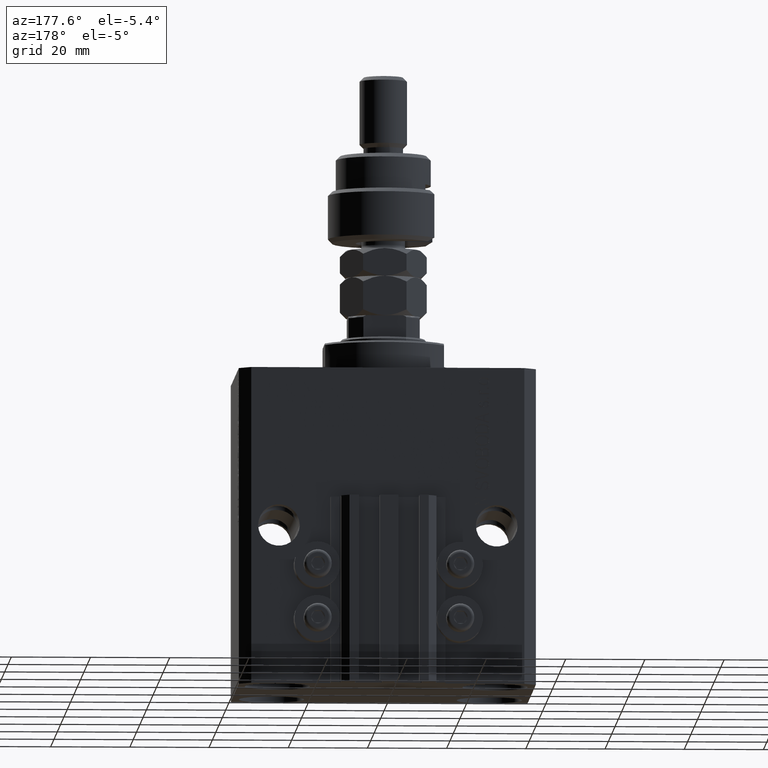
[diagram: clean part render]
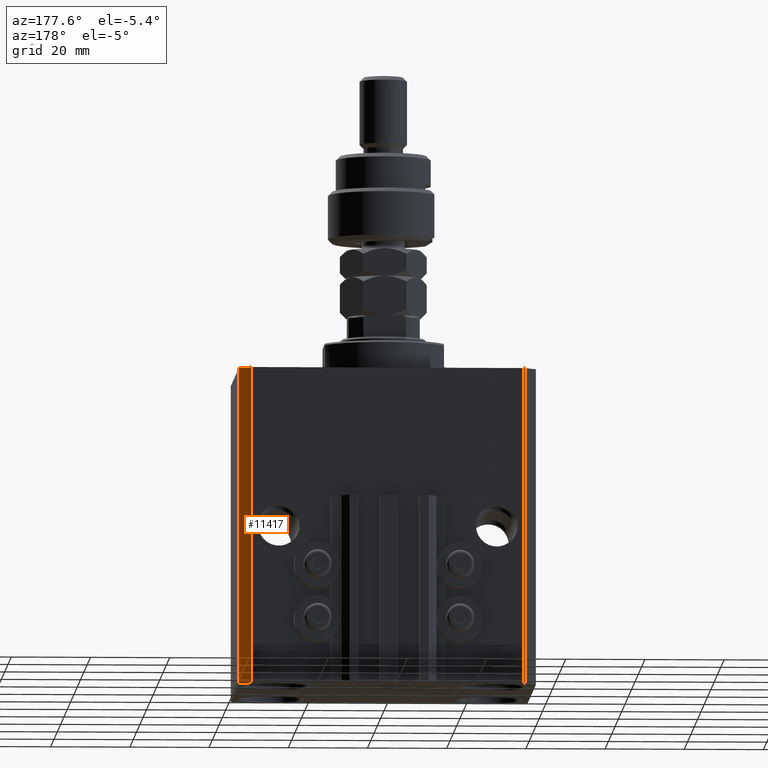
[diagram: same view with one face highlighted and labeled with its STEP entity id]
A machine part, auxiliary view. The second image highlights one B-rep face of the part: STEP entity #11417.
In plain terms, the highlighted planar face has unit normal (0.7071, 0.7071, 0).
Its self-contained STEP definition (entity closure, byte-faithful):
#499 = AXIS2_PLACEMENT_3D ( 'NONE', #31868, #24100, #36131 ) ;
#1289 = CARTESIAN_POINT ( 'NONE',  ( 34.50000000000056843, 27.50000000000000000, 0.000000000000000000 ) ) ;
#1378 = EDGE_CURVE ( 'NONE', #6586, #49499, #34544, .T. ) ;
#2132 = LINE ( 'NONE', #21430, #44668 ) ;
#4935 = VECTOR ( 'NONE', #34296, 1000.000000000000114 ) ;
#6586 = VERTEX_POINT ( 'NONE', #13557 ) ;
#9557 = ORIENTED_EDGE ( 'NONE', *, *, #35802, .F. ) ;
#9635 = EDGE_CURVE ( 'NONE', #35171, #6586, #20203, .T. ) ;
#11417 = ADVANCED_FACE ( 'NONE', ( #20811 ), #40141, .T. ) ;
#12015 = EDGE_CURVE ( 'NONE', #35171, #47504, #2132, .T. ) ;
#12648 = ORIENTED_EDGE ( 'NONE', *, *, #12015, .F. ) ;
#13557 = CARTESIAN_POINT ( 'NONE',  ( 34.50000000000056843, 27.50000000000000000, -80.00000000000000000 ) ) ;
#15672 = ORIENTED_EDGE ( 'NONE', *, *, #1378, .T. ) ;
#17409 = DIRECTION ( 'NONE',  ( 0.000000000000000000, 0.000000000000000000, 1.000000000000000000 ) ) ;
#18977 = CARTESIAN_POINT ( 'NONE',  ( 37.50000000000051870, 24.49999999999995381, 0.000000000000000000 ) ) ;
#20203 = LINE ( 'NONE', #27985, #26164 ) ;
#20811 = FACE_OUTER_BOUND ( 'NONE', #46917, .T. ) ;
#21430 = CARTESIAN_POINT ( 'NONE',  ( 37.50000000000051870, 24.49999999999995381, -80.00000000000000000 ) ) ;
#22627 = CARTESIAN_POINT ( 'NONE',  ( 37.50000000000051870, 24.49999999999995381, -80.00000000000000000 ) ) ;
#23823 = CARTESIAN_POINT ( 'NONE',  ( 37.50000000000051870, 24.49999999999995381, 0.000000000000000000 ) ) ;
#24100 = DIRECTION ( 'NONE',  ( 0.7071067811865594521, 0.7071067811865356934, -0.000000000000000000 ) ) ;
#24470 = DIRECTION ( 'NONE',  ( -0.7071067811865356934, 0.7071067811865594521, 0.000000000000000000 ) ) ;
#26164 = VECTOR ( 'NONE', #24470, 1000.000000000000114 ) ;
#27985 = CARTESIAN_POINT ( 'NONE',  ( 37.50000000000051870, 24.49999999999995381, -80.00000000000000000 ) ) ;
#31868 = CARTESIAN_POINT ( 'NONE',  ( 37.50000000000051870, 24.49999999999995381, -80.00000000000000000 ) ) ;
#34296 = DIRECTION ( 'NONE',  ( -0.7071067811865356934, 0.7071067811865594521, 0.000000000000000000 ) ) ;
#34544 = LINE ( 'NONE', #38307, #39075 ) ;
#35171 = VERTEX_POINT ( 'NONE', #22627 ) ;
#35802 = EDGE_CURVE ( 'NONE', #47504, #49499, #37814, .T. ) ;
#36131 = DIRECTION ( 'NONE',  ( -0.7071067811865356934, 0.7071067811865594521, 0.000000000000000000 ) ) ;
#37814 = LINE ( 'NONE', #18977, #4935 ) ;
#38307 = CARTESIAN_POINT ( 'NONE',  ( 34.50000000000056843, 27.50000000000000000, -80.00000000000000000 ) ) ;
#38364 = ORIENTED_EDGE ( 'NONE', *, *, #9635, .T. ) ;
#39075 = VECTOR ( 'NONE', #45860, 1000.000000000000000 ) ;
#40141 = PLANE ( 'NONE',  #499 ) ;
#44668 = VECTOR ( 'NONE', #17409, 1000.000000000000000 ) ;
#45860 = DIRECTION ( 'NONE',  ( 0.000000000000000000, 0.000000000000000000, 1.000000000000000000 ) ) ;
#46917 = EDGE_LOOP ( 'NONE', ( #9557, #12648, #38364, #15672 ) ) ;
#47504 = VERTEX_POINT ( 'NONE', #23823 ) ;
#49499 = VERTEX_POINT ( 'NONE', #1289 ) ;